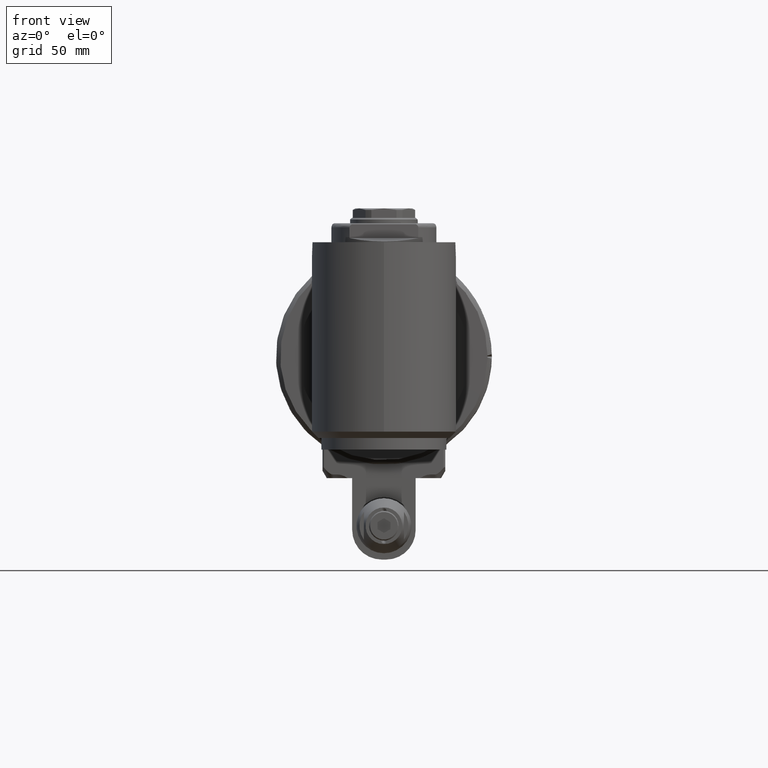
[diagram: clean part render]
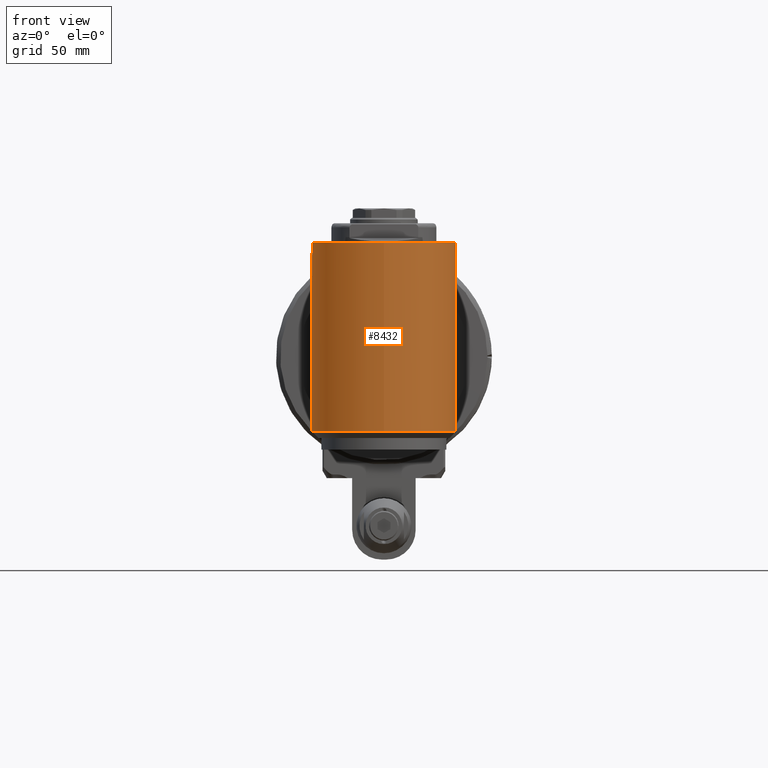
[diagram: same view with one face highlighted and labeled with its STEP entity id]
A machine part, front view. The second image highlights one B-rep face of the part: STEP entity #8432.
In plain terms, the highlighted cylindrical surface (bore or boss wall) has radius 34 mm, axis along (-0, 0, -1).
Its self-contained STEP definition (entity closure, byte-faithful):
#344=LINE('',#12811,#961);
#345=LINE('',#12814,#962);
#346=LINE('',#12817,#963);
#961=VECTOR('',#10086,82.5);
#962=VECTOR('',#10089,34.);
#963=VECTOR('',#10092,82.5);
#1578=CYLINDRICAL_SURFACE('',#9022,34.);
#1799=FACE_OUTER_BOUND('',#2331,.T.);
#2331=EDGE_LOOP('',(#5577,#5578,#5579,#5580,#5581,#5582,#5583,#5584));
#2937=CIRCLE('',#9020,34.);
#2939=CIRCLE('',#9023,34.);
#2940=CIRCLE('',#9024,34.);
#2941=CIRCLE('',#9025,34.);
#3437=VERTEX_POINT('',#12802);
#3439=VERTEX_POINT('',#12807);
#3440=VERTEX_POINT('',#12808);
#3441=VERTEX_POINT('',#12810);
#3442=VERTEX_POINT('',#12812);
#3443=VERTEX_POINT('',#12815);
#4276=EDGE_CURVE('',#3437,#3437,#2937,.T.);
#4278=EDGE_CURVE('',#3439,#3440,#2939,.T.);
#4279=EDGE_CURVE('',#3439,#3441,#344,.T.);
#4280=EDGE_CURVE('',#3442,#3441,#2940,.T.);
#4281=EDGE_CURVE('',#3442,#3437,#345,.T.);
#4282=EDGE_CURVE('',#3443,#3442,#2941,.T.);
#4283=EDGE_CURVE('',#3440,#3443,#346,.T.);
#5577=ORIENTED_EDGE('',*,*,#4278,.F.);
#5578=ORIENTED_EDGE('',*,*,#4279,.T.);
#5579=ORIENTED_EDGE('',*,*,#4280,.F.);
#5580=ORIENTED_EDGE('',*,*,#4281,.T.);
#5581=ORIENTED_EDGE('',*,*,#4276,.F.);
#5582=ORIENTED_EDGE('',*,*,#4281,.F.);
#5583=ORIENTED_EDGE('',*,*,#4282,.F.);
#5584=ORIENTED_EDGE('',*,*,#4283,.F.);
#8432=ADVANCED_FACE('',(#1799),#1578,.T.);
#9020=AXIS2_PLACEMENT_3D('',#12803,#10078,#10079);
#9022=AXIS2_PLACEMENT_3D('',#12806,#10082,#10083);
#9023=AXIS2_PLACEMENT_3D('',#12809,#10084,#10085);
#9024=AXIS2_PLACEMENT_3D('',#12813,#10087,#10088);
#9025=AXIS2_PLACEMENT_3D('',#12816,#10090,#10091);
#10078=DIRECTION('center_axis',(1.,0.,0.));
#10079=DIRECTION('ref_axis',(0.,1.,0.));
#10082=DIRECTION('center_axis',(-1.,0.,0.));
#10083=DIRECTION('ref_axis',(0.,1.,0.));
#10084=DIRECTION('center_axis',(-1.,0.,0.));
#10085=DIRECTION('ref_axis',(0.,4.702121045471E-14,1.));
#10086=DIRECTION('',(-1.,0.,0.));
#10087=DIRECTION('center_axis',(-1.,0.,0.));
#10088=DIRECTION('ref_axis',(0.,0.,-1.));
#10089=DIRECTION('',(1.,0.,0.));
#10090=DIRECTION('center_axis',(-1.,0.,0.));
#10091=DIRECTION('ref_axis',(0.,0.,-1.));
#10092=DIRECTION('',(-1.,0.,0.));
#12802=CARTESIAN_POINT('',(43.16004178792,-57.,-1.09523038604499E-13));
#12803=CARTESIAN_POINT('Origin',(43.16004178792,-23.,-1.136868377216E-13));
#12806=CARTESIAN_POINT('Origin',(0.,-23.,-1.136868377216E-13));
#12807=CARTESIAN_POINT('',(36.16004178792,-23.,34.));
#12808=CARTESIAN_POINT('',(36.16004178792,-23.,-34.));
#12809=CARTESIAN_POINT('Origin',(36.16004178792,-23.,-1.136868377216E-13));
#12810=CARTESIAN_POINT('',(-46.33995821208,-23.,34.));
#12811=CARTESIAN_POINT('',(36.16004178792,-23.,34.));
#12812=CARTESIAN_POINT('',(-46.33995821208,-57.,-1.09523038604499E-13));
#12813=CARTESIAN_POINT('Origin',(-46.33995821208,-23.,-1.136868377216E-13));
#12814=CARTESIAN_POINT('',(0.,-57.,-1.09523038604499E-13));
#12815=CARTESIAN_POINT('',(-46.33995821208,-23.,-34.));
#12816=CARTESIAN_POINT('Origin',(-46.33995821208,-23.,-1.136868377216E-13));
#12817=CARTESIAN_POINT('',(36.16004178792,-23.,-34.));